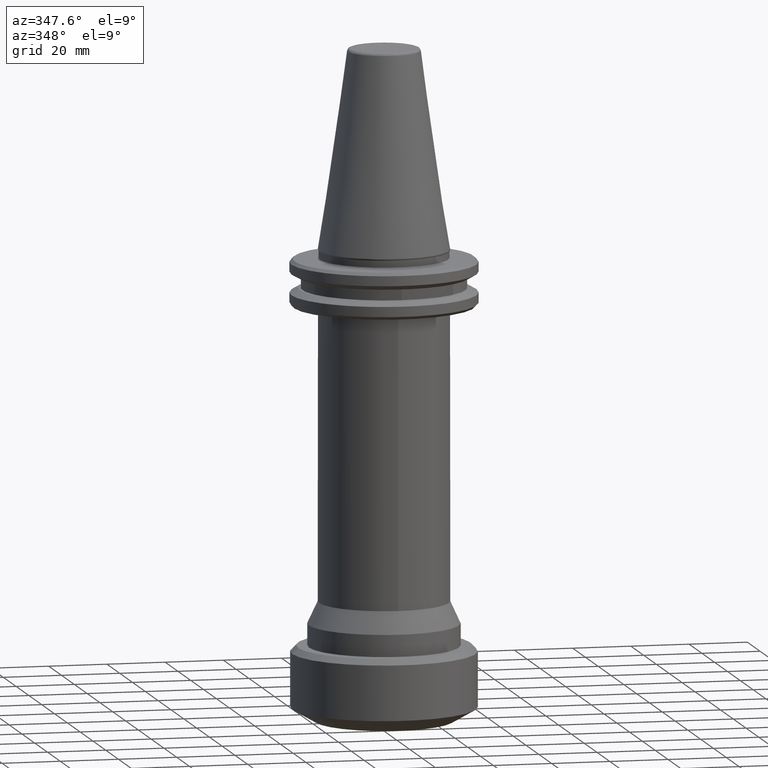
[diagram: clean part render]
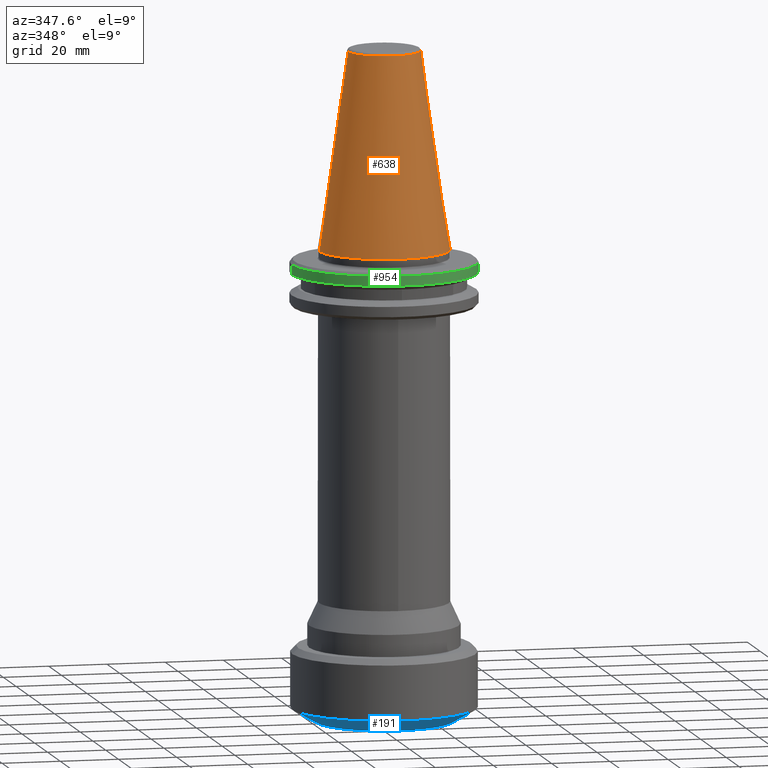
[diagram: same view with three faces highlighted in distinct colors, each labeled with its STEP entity id]
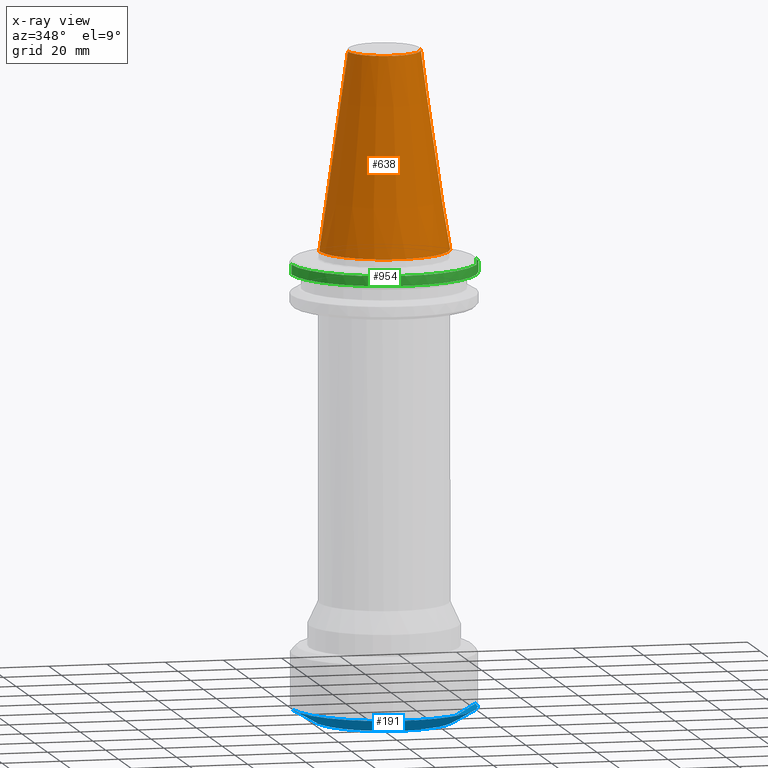
[diagram: x-ray of the same camera — body ghosted, the three highlighted faces saturated]
A machine part, auxiliary view with three faces highlighted in distinct colors.
The next image is the same camera in x-ray (body ghosted, the three faces saturated) — at least one of them is partly hidden behind the body in this view.
Their STEP definitions:

[orange] entity #638 — the highlighted conical surface has half-angle 8.297 deg.
#32 = FACE_OUTER_BOUND ( 'NONE', #628, .T. ) ;
#107 = VERTEX_POINT ( 'NONE', #259 ) ;
#121 = CARTESIAN_POINT ( 'NONE',  ( 22.22499999999999400, 2.721777511104992100E-015, 0.0000000000000000000 ) ) ;
#147 = CARTESIAN_POINT ( 'NONE',  ( -22.22499999999999400, 0.0000000000000000000, 0.0000000000000000000 ) ) ;
#213 = VERTEX_POINT ( 'NONE', #942 ) ;
#259 = CARTESIAN_POINT ( 'NONE',  ( 22.22499999999999400, 2.721777511104992100E-015, 0.0000000000000000000 ) ) ;
#280 = DIRECTION ( 'NONE',  ( 0.1443082272694599400, 1.767266086161729200E-017, -0.9895327864918603800 ) ) ;
#292 = CARTESIAN_POINT ( 'NONE',  ( 0.0000000000000000000, 0.0000000000000000000, 67.54430822701309000 ) ) ;
#305 = CARTESIAN_POINT ( 'NONE',  ( 0.0000000000000000000, 0.0000000000000000000, 0.0000000000000000000 ) ) ;
#339 = ORIENTED_EDGE ( 'NONE', *, *, #1246, .T. ) ;
#340 = CARTESIAN_POINT ( 'NONE',  ( -22.22499999999999400, 0.0000000000000000000, 0.0000000000000000000 ) ) ;
#349 = DIRECTION ( 'NONE',  ( -0.1443082272694599400, 0.0000000000000000000, -0.9895327864918603800 ) ) ;
#444 = DIRECTION ( 'NONE',  ( -1.000000000000000000, 0.0000000000000000000, 0.0000000000000000000 ) ) ;
#453 = DIRECTION ( 'NONE',  ( -1.000000000000000000, 0.0000000000000000000, 0.0000000000000000000 ) ) ;
#457 = ORIENTED_EDGE ( 'NONE', *, *, #1136, .F. ) ;
#504 = EDGE_CURVE ( 'NONE', #1305, #107, #1361, .T. ) ;
#547 = VERTEX_POINT ( 'NONE', #840 ) ;
#628 = EDGE_LOOP ( 'NONE', ( #457, #339, #762, #1147 ) ) ;
#638 = ADVANCED_FACE ( 'NONE', ( #32 ), #777, .T. ) ;
#706 = AXIS2_PLACEMENT_3D ( 'NONE', #907, #1355, #1502 ) ;
#762 = ORIENTED_EDGE ( 'NONE', *, *, #1486, .T. ) ;
#777 = CONICAL_SURFACE ( 'NONE', #706, 22.22499999999999400, 0.1448138465495947800 ) ;
#840 = CARTESIAN_POINT ( 'NONE',  ( 12.37469537590452100, -2.855354478374084000E-009, 67.54430822699950500 ) ) ;
#907 = CARTESIAN_POINT ( 'NONE',  ( 0.0000000000000000000, 0.0000000000000000000, 0.0000000000000000000 ) ) ;
#936 = VECTOR ( 'NONE', #280, 1000.000000000000100 ) ;
#942 = CARTESIAN_POINT ( 'NONE',  ( -12.37469537590595300, -5.555843992514513000E-010, 67.54430822698967100 ) ) ;
#1053 = AXIS2_PLACEMENT_3D ( 'NONE', #292, #1333, #444 ) ;
#1136 = EDGE_CURVE ( 'NONE', #547, #107, #1329, .T. ) ;
#1147 = ORIENTED_EDGE ( 'NONE', *, *, #504, .T. ) ;
#1242 = CIRCLE ( 'NONE', #1053, 12.37469537599809200 ) ;
#1246 = EDGE_CURVE ( 'NONE', #547, #213, #1242, .T. ) ;
#1267 = VECTOR ( 'NONE', #349, 1000.000000000000100 ) ;
#1305 = VERTEX_POINT ( 'NONE', #147 ) ;
#1329 = LINE ( 'NONE', #121, #936 ) ;
#1333 = DIRECTION ( 'NONE',  ( 0.0000000000000000000, 0.0000000000000000000, -1.000000000000000000 ) ) ;
#1344 = DIRECTION ( 'NONE',  ( -0.0000000000000000000, -0.0000000000000000000, 1.000000000000000000 ) ) ;
#1355 = DIRECTION ( 'NONE',  ( 0.0000000000000000000, 0.0000000000000000000, -1.000000000000000000 ) ) ;
#1361 = CIRCLE ( 'NONE', #1435, 22.22499999999999400 ) ;
#1435 = AXIS2_PLACEMENT_3D ( 'NONE', #305, #1344, #453 ) ;
#1486 = EDGE_CURVE ( 'NONE', #213, #1305, #1655, .T. ) ;
#1502 = DIRECTION ( 'NONE',  ( -1.000000000000000000, 0.0000000000000000000, 0.0000000000000000000 ) ) ;
#1655 = LINE ( 'NONE', #340, #1267 ) ;

[blue] entity #191 — the highlighted conical surface has half-angle 60 deg.
#47 = DIRECTION ( 'NONE',  ( -0.0000000000000000000, -0.0000000000000000000, 1.000000000000000000 ) ) ;
#61 = LINE ( 'NONE', #224, #1156 ) ;
#68 = DIRECTION ( 'NONE',  ( -0.0000000000000000000, -0.0000000000000000000, 1.000000000000000000 ) ) ;
#148 = EDGE_CURVE ( 'NONE', #1162, #1025, #596, .T. ) ;
#168 = DIRECTION ( 'NONE',  ( 1.000000000000000000, 0.0000000000000000000, 0.0000000000000000000 ) ) ;
#191 = ADVANCED_FACE ( 'NONE', ( #203 ), #1300, .T. ) ;
#203 = FACE_OUTER_BOUND ( 'NONE', #1422, .T. ) ;
#224 = CARTESIAN_POINT ( 'NONE',  ( 23.49999999979075900, 0.0000000000000000000, -159.9999999996378200 ) ) ;
#359 = DIRECTION ( 'NONE',  ( 0.8660254037844391500, 0.0000000000000000000, 0.4999999999999991100 ) ) ;
#390 = CARTESIAN_POINT ( 'NONE',  ( -23.49999999979075900, 2.877919977970655400E-015, -159.9999999996378200 ) ) ;
#398 = EDGE_CURVE ( 'NONE', #815, #1025, #61, .T. ) ;
#431 = CARTESIAN_POINT ( 'NONE',  ( -31.50000000000000000, 3.857637417314162700E-015, -155.3811978460000200 ) ) ;
#463 = DIRECTION ( 'NONE',  ( -0.0000000000000000000, -0.0000000000000000000, 1.000000000000000000 ) ) ;
#596 = CIRCLE ( 'NONE', #763, 31.50000000000000000 ) ;
#601 = VERTEX_POINT ( 'NONE', #1026 ) ;
#763 = AXIS2_PLACEMENT_3D ( 'NONE', #971, #68, #1118 ) ;
#815 = VERTEX_POINT ( 'NONE', #945 ) ;
#915 = CARTESIAN_POINT ( 'NONE',  ( 0.0000000000000000000, 0.0000000000000000000, -159.9999999996378200 ) ) ;
#934 = VECTOR ( 'NONE', #1872, 1000.000000000000000 ) ;
#945 = CARTESIAN_POINT ( 'NONE',  ( 23.49999999979075900, 0.0000000000000000000, -159.9999999996378200 ) ) ;
#946 = CARTESIAN_POINT ( 'NONE',  ( 0.0000000000000000000, 0.0000000000000000000, -159.9999999996378200 ) ) ;
#971 = CARTESIAN_POINT ( 'NONE',  ( 0.0000000000000000000, 0.0000000000000000000, -155.3811978460000200 ) ) ;
#976 = AXIS2_PLACEMENT_3D ( 'NONE', #915, #463, #168 ) ;
#990 = LINE ( 'NONE', #390, #934 ) ;
#1025 = VERTEX_POINT ( 'NONE', #1134 ) ;
#1026 = CARTESIAN_POINT ( 'NONE',  ( -23.49999999979075900, 3.367778697642408600E-015, -159.9999999996378200 ) ) ;
#1094 = DIRECTION ( 'NONE',  ( 1.000000000000000000, 0.0000000000000000000, 0.0000000000000000000 ) ) ;
#1118 = DIRECTION ( 'NONE',  ( 1.000000000000000000, 0.0000000000000000000, 0.0000000000000000000 ) ) ;
#1134 = CARTESIAN_POINT ( 'NONE',  ( 31.50000000000000000, 0.0000000000000000000, -155.3811978460000200 ) ) ;
#1156 = VECTOR ( 'NONE', #359, 1000.000000000000000 ) ;
#1162 = VERTEX_POINT ( 'NONE', #431 ) ;
#1186 = ORIENTED_EDGE ( 'NONE', *, *, #148, .F. ) ;
#1300 = CONICAL_SURFACE ( 'NONE', #976, 23.49999999979075900, 1.047197551196598700 ) ;
#1422 = EDGE_LOOP ( 'NONE', ( #1696, #1444, #1507, #1186 ) ) ;
#1444 = ORIENTED_EDGE ( 'NONE', *, *, #1844, .T. ) ;
#1507 = ORIENTED_EDGE ( 'NONE', *, *, #398, .T. ) ;
#1696 = ORIENTED_EDGE ( 'NONE', *, *, #1734, .F. ) ;
#1734 = EDGE_CURVE ( 'NONE', #601, #1162, #990, .T. ) ;
#1844 = EDGE_CURVE ( 'NONE', #601, #815, #1927, .T. ) ;
#1868 = AXIS2_PLACEMENT_3D ( 'NONE', #946, #47, #1094 ) ;
#1872 = DIRECTION ( 'NONE',  ( -0.8660254037844391500, 1.060575238724907500E-016, 0.4999999999999991100 ) ) ;
#1927 = CIRCLE ( 'NONE', #1868, 23.49999999979075900 ) ;

[green] entity #954 — the highlighted cylindrical surface (partial cylindrical patch) has radius 31.75 mm, axis along (0, 0, 1).
#16 = CARTESIAN_POINT ( 'NONE',  ( -31.75000000000005700, 3.888253587292853600E-015, -4.200000000000036600 ) ) ;
#50 = DIRECTION ( 'NONE',  ( -0.0000000000000000000, -0.0000000000000000000, 1.000000000000000000 ) ) ;
#80 = EDGE_CURVE ( 'NONE', #575, #1835, #1780, .T. ) ;
#97 = CIRCLE ( 'NONE', #1571, 31.75000000000000000 ) ;
#106 = ORIENTED_EDGE ( 'NONE', *, *, #477, .F. ) ;
#131 = DIRECTION ( 'NONE',  ( -0.0000000000000000000, -0.0000000000000000000, 1.000000000000000000 ) ) ;
#160 = VERTEX_POINT ( 'NONE', #1848 ) ;
#181 = VERTEX_POINT ( 'NONE', #16 ) ;
#230 = CIRCLE ( 'NONE', #1036, 31.75000000039750200 ) ;
#244 = LINE ( 'NONE', #1869, #1429 ) ;
#255 = VECTOR ( 'NONE', #694, 1000.000000000000000 ) ;
#258 = ORIENTED_EDGE ( 'NONE', *, *, #1813, .T. ) ;
#337 = EDGE_CURVE ( 'NONE', #1531, #1740, #804, .T. ) ;
#351 = CARTESIAN_POINT ( 'NONE',  ( 0.0000000000000000000, 0.0000000000000000000, -7.578163358026492900 ) ) ;
#361 = DIRECTION ( 'NONE',  ( 1.000000000000000000, 0.0000000000000000000, 0.0000000000000000000 ) ) ;
#388 = VERTEX_POINT ( 'NONE', #1116 ) ;
#406 = ORIENTED_EDGE ( 'NONE', *, *, #1028, .F. ) ;
#421 = AXIS2_PLACEMENT_3D ( 'NONE', #1663, #768, #1810 ) ;
#477 = EDGE_CURVE ( 'NONE', #160, #388, #230, .T. ) ;
#508 = DIRECTION ( 'NONE',  ( 1.000000000000000000, 0.0000000000000000000, 0.0000000000000000000 ) ) ;
#532 = EDGE_LOOP ( 'NONE', ( #1126, #106, #926, #258, #1522, #902, #1676, #406, #780 ) ) ;
#570 = DIRECTION ( 'NONE',  ( -0.0000000000000000000, -0.0000000000000000000, 1.000000000000000000 ) ) ;
#572 = CARTESIAN_POINT ( 'NONE',  ( 0.0000000000000000000, 0.0000000000000000000, -7.578163357770503000 ) ) ;
#575 = VERTEX_POINT ( 'NONE', #862 ) ;
#694 = DIRECTION ( 'NONE',  ( 0.0000000000000000000, 0.0000000000000000000, 1.000000000000000000 ) ) ;
#697 = EDGE_CURVE ( 'NONE', #181, #1286, #1611, .T. ) ;
#715 = DIRECTION ( 'NONE',  ( 1.000000000000000000, 1.776356839400250500E-015, 0.0000000000000000000 ) ) ;
#768 = DIRECTION ( 'NONE',  ( -0.0000000000000000000, -0.0000000000000000000, 1.000000000000000000 ) ) ;
#772 = CARTESIAN_POINT ( 'NONE',  ( 0.0000000000000000000, 0.0000000000000000000, -7.578163357929321700 ) ) ;
#780 = ORIENTED_EDGE ( 'NONE', *, *, #697, .F. ) ;
#804 = CIRCLE ( 'NONE', #421, 31.75000000000005700 ) ;
#811 = CARTESIAN_POINT ( 'NONE',  ( 0.0000000000000000000, 0.0000000000000000000, -7.578163358000000300 ) ) ;
#849 = CYLINDRICAL_SURFACE ( 'NONE', #1085, 31.75000000000000000 ) ;
#860 = CIRCLE ( 'NONE', #1408, 31.74999999995411300 ) ;
#862 = CARTESIAN_POINT ( 'NONE',  ( 31.74999999995411300, 0.0000000000000000000, -7.578163358026492900 ) ) ;
#902 = ORIENTED_EDGE ( 'NONE', *, *, #1517, .F. ) ;
#926 = ORIENTED_EDGE ( 'NONE', *, *, #1472, .T. ) ;
#930 = DIRECTION ( 'NONE',  ( 1.000000000000000000, 0.0000000000000000000, 0.0000000000000000000 ) ) ;
#948 = CARTESIAN_POINT ( 'NONE',  ( 0.0000000000000000000, 0.0000000000000000000, -7.578163357943756400 ) ) ;
#954 = ADVANCED_FACE ( 'NONE', ( #1639 ), #849, .T. ) ;
#969 = CARTESIAN_POINT ( 'NONE',  ( -8.600431038069855200, -30.56296919408950800, -7.578163357969574900 ) ) ;
#972 = DIRECTION ( 'NONE',  ( 0.0000000000000000000, 0.0000000000000000000, 1.000000000000000000 ) ) ;
#988 = DIRECTION ( 'NONE',  ( 0.0000000000000000000, 0.0000000000000000000, 1.000000000000000000 ) ) ;
#1028 = EDGE_CURVE ( 'NONE', #1286, #1835, #1202, .T. ) ;
#1035 = CARTESIAN_POINT ( 'NONE',  ( 0.0000000000000000000, 0.0000000000000000000, -4.200000000000036600 ) ) ;
#1036 = AXIS2_PLACEMENT_3D ( 'NONE', #572, #1609, #715 ) ;
#1085 = AXIS2_PLACEMENT_3D ( 'NONE', #811, #972, #361 ) ;
#1100 = DIRECTION ( 'NONE',  ( 1.000000000000000000, 0.0000000000000000000, 0.0000000000000000000 ) ) ;
#1116 = CARTESIAN_POINT ( 'NONE',  ( -31.75000000039750200, 3.888253587341526300E-015, -7.578163357770503000 ) ) ;
#1126 = ORIENTED_EDGE ( 'NONE', *, *, #1686, .F. ) ;
#1177 = DIRECTION ( 'NONE',  ( 1.000000000000000000, 0.0000000000000000000, 0.0000000000000000000 ) ) ;
#1202 = CIRCLE ( 'NONE', #1291, 31.75000000000005700 ) ;
#1210 = AXIS2_PLACEMENT_3D ( 'NONE', #948, #50, #1100 ) ;
#1286 = VERTEX_POINT ( 'NONE', #1781 ) ;
#1291 = AXIS2_PLACEMENT_3D ( 'NONE', #1035, #131, #1177 ) ;
#1323 = VERTEX_POINT ( 'NONE', #1794 ) ;
#1338 = CARTESIAN_POINT ( 'NONE',  ( 31.75000000000000000, 0.0000000000000000000, -7.578163358000000300 ) ) ;
#1401 = DIRECTION ( 'NONE',  ( -0.0000000000000000000, -0.0000000000000000000, -1.000000000000000000 ) ) ;
#1408 = AXIS2_PLACEMENT_3D ( 'NONE', #351, #1401, #508 ) ;
#1424 = AXIS2_PLACEMENT_3D ( 'NONE', #1464, #570, #1608 ) ;
#1429 = VECTOR ( 'NONE', #988, 1000.000000000000000 ) ;
#1464 = CARTESIAN_POINT ( 'NONE',  ( 0.0000000000000000000, 0.0000000000000000000, -4.200000000000036600 ) ) ;
#1472 = EDGE_CURVE ( 'NONE', #160, #1323, #1742, .T. ) ;
#1517 = EDGE_CURVE ( 'NONE', #575, #1740, #860, .T. ) ;
#1522 = ORIENTED_EDGE ( 'NONE', *, *, #337, .T. ) ;
#1531 = VERTEX_POINT ( 'NONE', #969 ) ;
#1571 = AXIS2_PLACEMENT_3D ( 'NONE', #772, #1819, #930 ) ;
#1608 = DIRECTION ( 'NONE',  ( 1.000000000000000000, 0.0000000000000000000, 0.0000000000000000000 ) ) ;
#1609 = DIRECTION ( 'NONE',  ( -0.0000000000000000000, -0.0000000000000000000, -1.000000000000000000 ) ) ;
#1611 = CIRCLE ( 'NONE', #1424, 31.75000000000005700 ) ;
#1639 = FACE_OUTER_BOUND ( 'NONE', #532, .T. ) ;
#1658 = CARTESIAN_POINT ( 'NONE',  ( 8.717907036256404400, -30.52966748656525900, -7.578163358548543700 ) ) ;
#1663 = CARTESIAN_POINT ( 'NONE',  ( 0.0000000000000000000, 0.0000000000000000000, -7.578163357943756400 ) ) ;
#1676 = ORIENTED_EDGE ( 'NONE', *, *, #80, .T. ) ;
#1686 = EDGE_CURVE ( 'NONE', #388, #181, #244, .T. ) ;
#1740 = VERTEX_POINT ( 'NONE', #1658 ) ;
#1742 = CIRCLE ( 'NONE', #1210, 31.75000000000005700 ) ;
#1780 = LINE ( 'NONE', #1338, #255 ) ;
#1781 = CARTESIAN_POINT ( 'NONE',  ( 3.888253587292851200E-015, -31.75000000000003600, -4.200000000000036600 ) ) ;
#1794 = CARTESIAN_POINT ( 'NONE',  ( -18.50000000000000000, -25.80334280677388700, -7.578163357929296000 ) ) ;
#1810 = DIRECTION ( 'NONE',  ( 1.000000000000000000, 0.0000000000000000000, 0.0000000000000000000 ) ) ;
#1813 = EDGE_CURVE ( 'NONE', #1323, #1531, #97, .T. ) ;
#1819 = DIRECTION ( 'NONE',  ( 0.0000000000000000000, 0.0000000000000000000, 1.000000000000000000 ) ) ;
#1821 = CARTESIAN_POINT ( 'NONE',  ( 31.75000000000005700, 0.0000000000000000000, -4.200000000000036600 ) ) ;
#1835 = VERTEX_POINT ( 'NONE', #1821 ) ;
#1848 = CARTESIAN_POINT ( 'NONE',  ( -25.80334280698913600, -18.50000000000000000, -7.578163357770503000 ) ) ;
#1869 = CARTESIAN_POINT ( 'NONE',  ( -31.75000000000000000, 3.888253587292846500E-015, -7.578163358000000300 ) ) ;